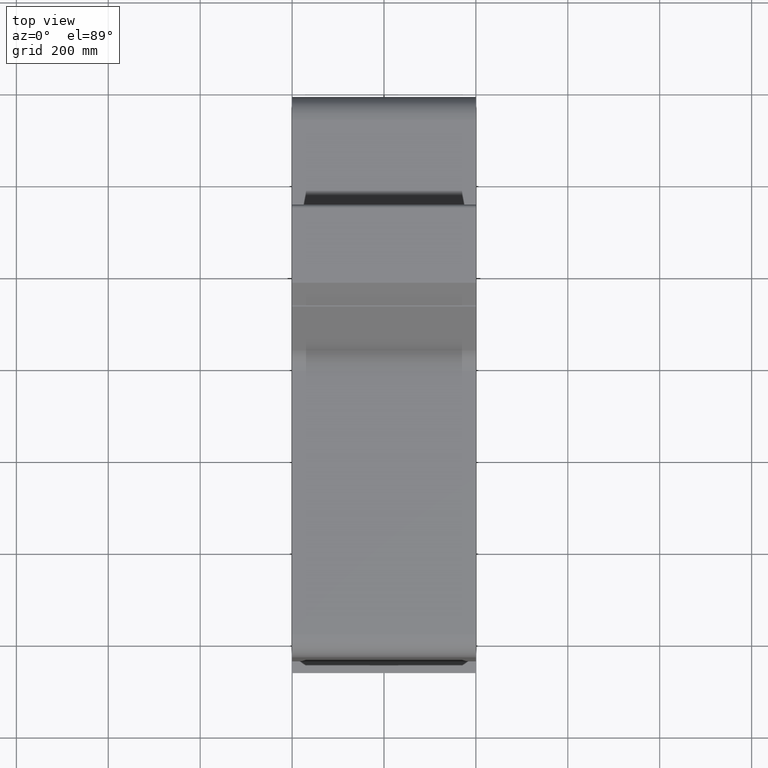
[diagram: clean part render]
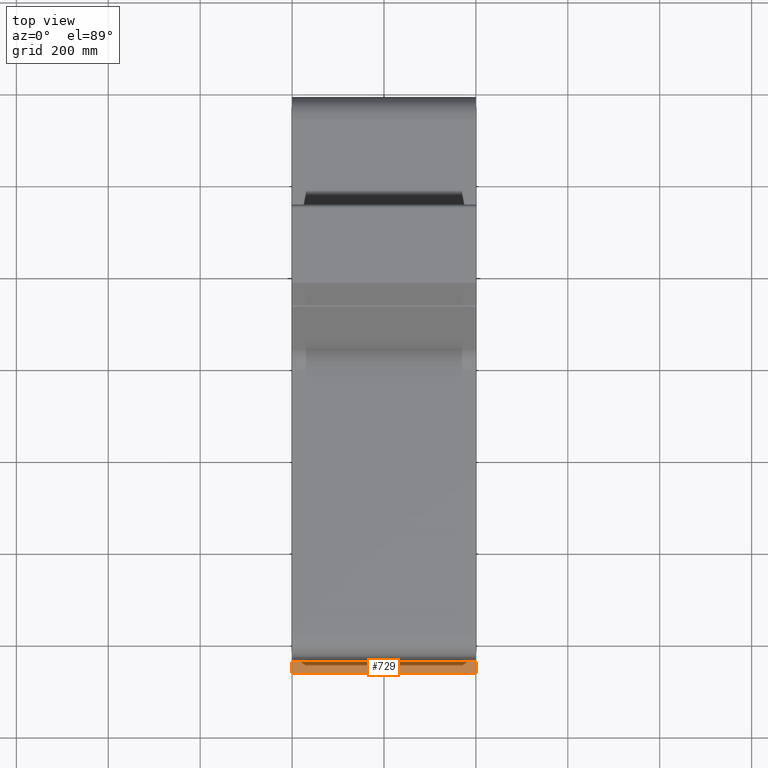
[diagram: same view with one face highlighted and labeled with its STEP entity id]
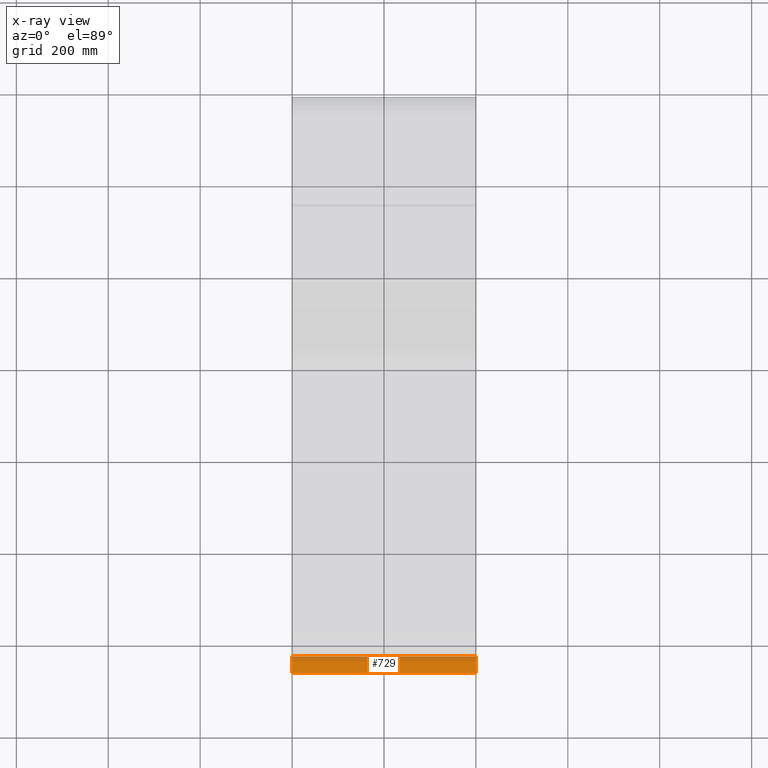
[diagram: x-ray of the same camera — body ghosted, the highlighted face saturated]
A machine part, top view. The second image highlights one B-rep face of the part: STEP entity #729.
The next image is the same camera in x-ray: the body ghosted, the highlighted face saturated — about 21% of this face is hidden behind the body in this view.
In plain terms, the highlighted planar face has unit normal (0, -0.2676, 0.9635).
Its self-contained STEP definition (entity closure, byte-faithful):
#673=CARTESIAN_POINT('',(400.0,-860.00000000002331,-7.500000000006635));
#674=VERTEX_POINT('',#673);
#681=CARTESIAN_POINT('',(0.0,-860.00000000002331,-7.500000000006635));
#682=VERTEX_POINT('',#681);
#683=CARTESIAN_POINT('',(0.0,-860.00000000002331,-7.500000000006635));
#684=DIRECTION('',(1.0,0.0,0.0));
#685=VECTOR('',#684,400.0);
#686=LINE('',#683,#685);
#687=EDGE_CURVE('',#682,#674,#686,.T.);
#699=CARTESIAN_POINT('',(0.0,-860.00000000002331,-7.500000000006635));
#700=DIRECTION('',(0.0,-0.267643863786103,0.963517909629938));
#701=DIRECTION('',(1.0,0.0,0.0));
#702=AXIS2_PLACEMENT_3D('',#699,#700,#701);
#703=PLANE('',#702);
#704=CARTESIAN_POINT('',(400.0,-823.99999999999977,2.500000000000231));
#705=VERTEX_POINT('',#704);
#706=CARTESIAN_POINT('',(400.0,-860.00000000002331,-7.500000000006633));
#707=DIRECTION('',(0.0,0.963517909629938,0.267643863786103));
#708=VECTOR('',#707,37.363083384563318);
#709=LINE('',#706,#708);
#710=EDGE_CURVE('',#674,#705,#709,.T.);
#711=ORIENTED_EDGE('',*,*,#710,.T.);
#712=CARTESIAN_POINT('',(0.0,-823.99999999999977,2.500000000000231));
#713=VERTEX_POINT('',#712);
#714=CARTESIAN_POINT('',(0.0,-823.99999999999977,2.500000000000231));
#715=DIRECTION('',(1.0,0.0,0.0));
#716=VECTOR('',#715,400.0);
#717=LINE('',#714,#716);
#718=EDGE_CURVE('',#713,#705,#717,.T.);
#719=ORIENTED_EDGE('',*,*,#718,.F.);
#720=CARTESIAN_POINT('',(0.0,-823.99999999999977,2.500000000000231));
#721=DIRECTION('',(0.0,-0.963517909629938,-0.267643863786103));
#722=VECTOR('',#721,37.363083384563318);
#723=LINE('',#720,#722);
#724=EDGE_CURVE('',#713,#682,#723,.T.);
#725=ORIENTED_EDGE('',*,*,#724,.T.);
#726=ORIENTED_EDGE('',*,*,#687,.T.);
#727=EDGE_LOOP('',(#711,#719,#725,#726));
#728=FACE_OUTER_BOUND('',#727,.T.);
#729=ADVANCED_FACE('',(#728),#703,.T.);